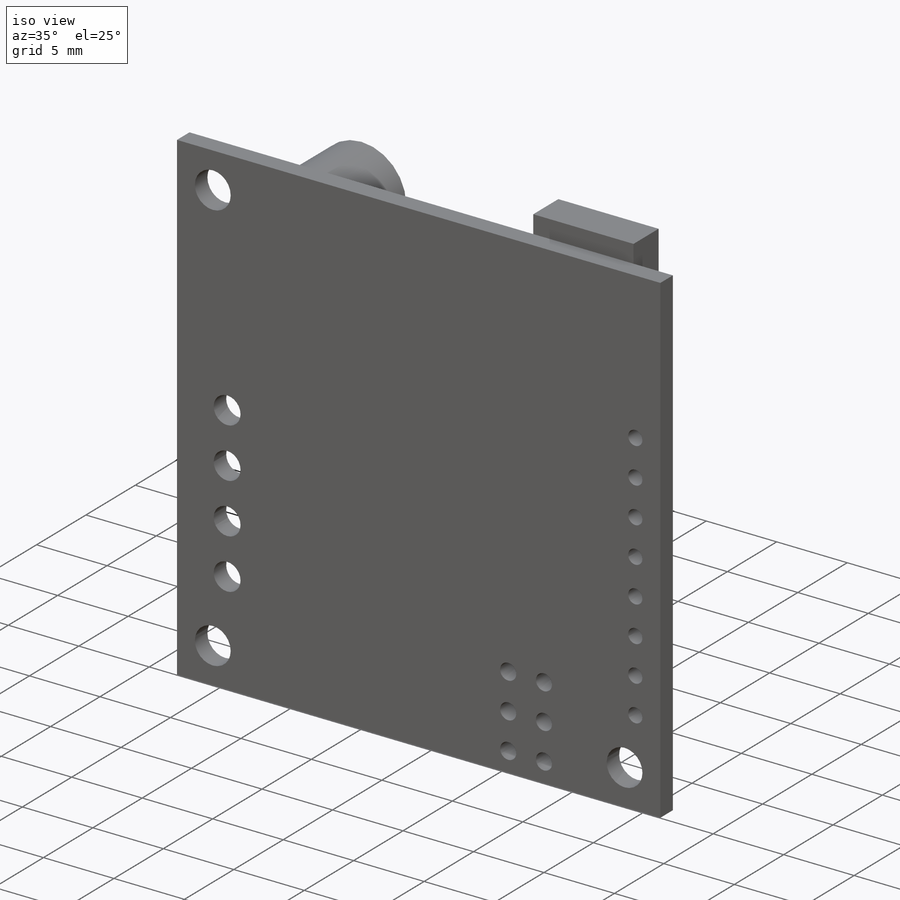
[diagram: iso view]
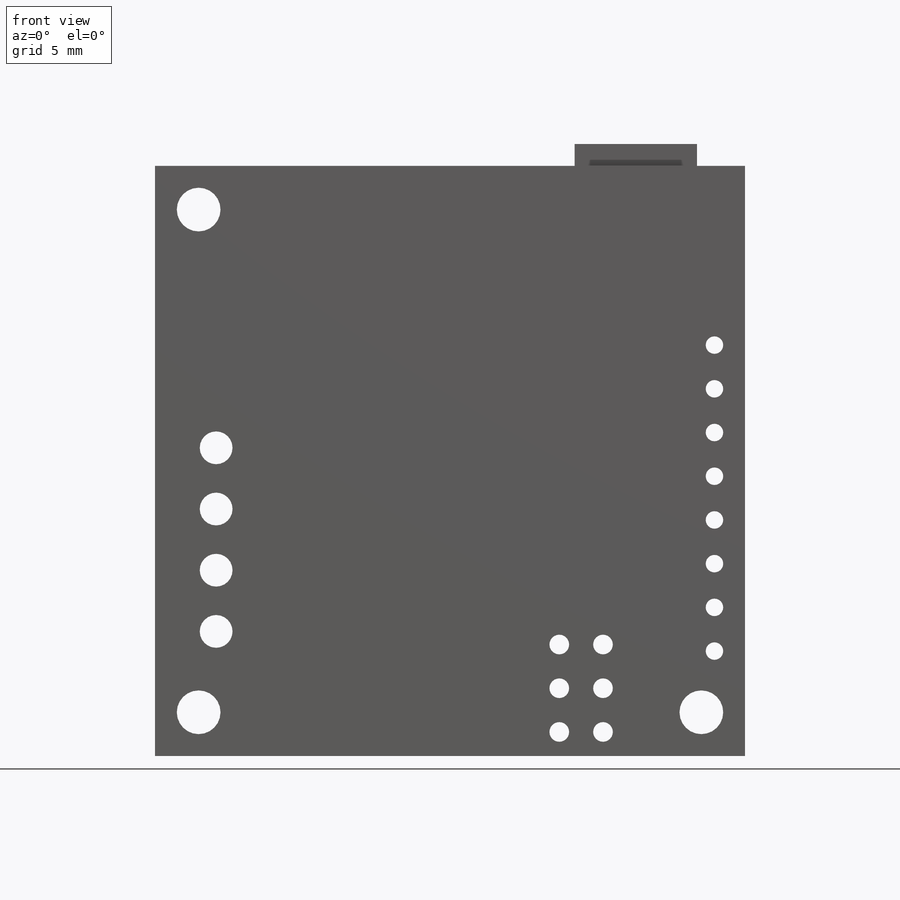
[diagram: front view]
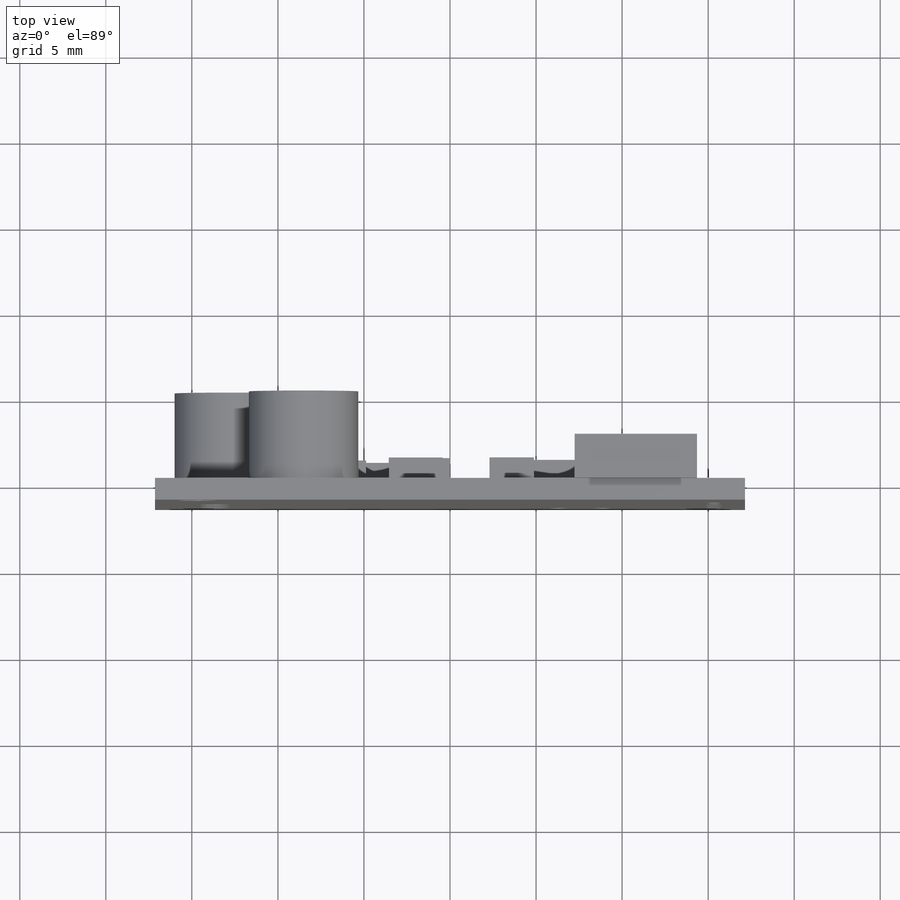
[diagram: top view]
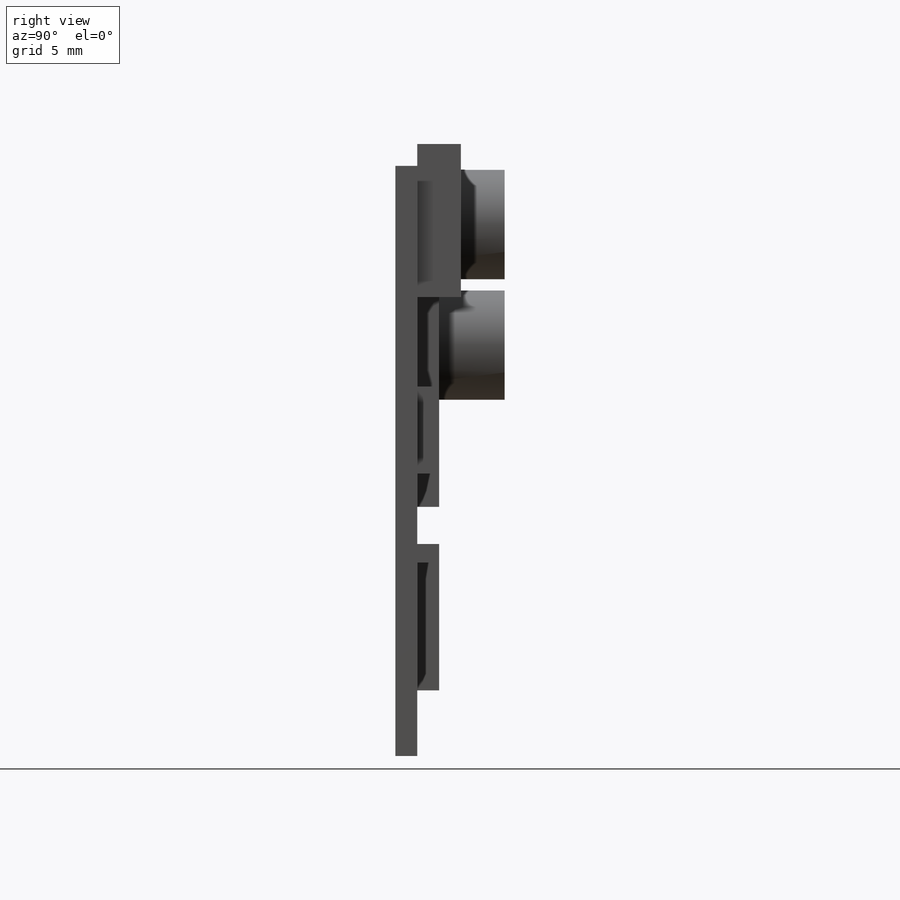
[diagram: right view]
SOLIDWORKS PART (.sldprt)
format: sldprt  version: not decoded by parser v0  size: 699,392 bytes
history: native  units: mm
features: sketch x8, extrude x4, cut_extrude x4, pattern_linear x2, material x1 (+16 scaffold rows collapsed)
feature tree (35):
  scaffold x16  (default folders/planes/origin — collapsed)
  material  "Material <not specified>"
  sketch  "Sketch1"  dims[D1=34.29mm]
  extrude  "Extrude1"  Depth=1.27mm
  sketch  "Sketch2"  dims[D1=2.54mm D2=29.21mm]
  cut_extrude  "Extrude2"  [1 undecoded]
  sketch  "Sketch3"  dims[D1=1.905mm D2=7.239mm D3=3.556mm D4=3.556mm]
  cut_extrude  "Extrude3"  [1 undecoded]
  sketch  "Sketch4"  dims[D1=1.143mm D2=2.54mm D3=1.397mm D4=8.255mm]
  cut_extrude  "Extrude4"  [1 undecoded]
  pattern_linear  "LPattern1"  Count1=3 Count2=1 Spacing1=2.54mm Spacing2=2.54mm
  sketch  "Sketch5"  dims[D1=1.016mm D2=1.778mm D3=6.096mm]
  cut_extrude  "Extrude5"  [1 undecoded]
  pattern_linear  "LPattern2"  Count1=8 Count2=1 Spacing1=2.54mm Spacing2=2.54mm
  sketch  "Sketch7"  dims[D1=~7.030886mm D2=~5.062238mm D3=~5.239367mm D4=~12.832723mm D5=~1.45305mm D6=~2.577991mm D7=~12.270253mm D8=~4.770641mm D9=~1.406177mm D10=~3.140462mm D11=~5.192494mm D12=~13.582685mm D13=~3.28108mm D14=~6.37467mm D15=~7.30176mm D16=~13.86392mm D17=~4.92162mm D18=~3.421698mm D19=~14.895117mm D20=~8.848555mm D21=7.62mm D22=7.874mm D23=7.874mm D24=3.81mm]
  extrude  "Extrude7"  Depth=1.27mm
  sketch  "Sketch8"  dims[D3=6.35mm D1=4.318mm D2=10.414mm D4=~3.411336mm D5=8.636mm]
  extrude  "Extrude8"  Depth=5.08mm
  sketch  "Sketch9"  dims[D1=7.112mm D2=8.89mm D3=7.62mm D4=2.794mm]
  extrude  "Extrude9"  Depth=2.54mm
decode coverage: 14 of 18 modeling features carry decoded parameters
note: ~ marks probable driven/reference dimensions
note: 4 parameter values undecoded
summary: no parameter record found for 4 features
note: suppression state not decoded; provenance and decode notes live in map.json
